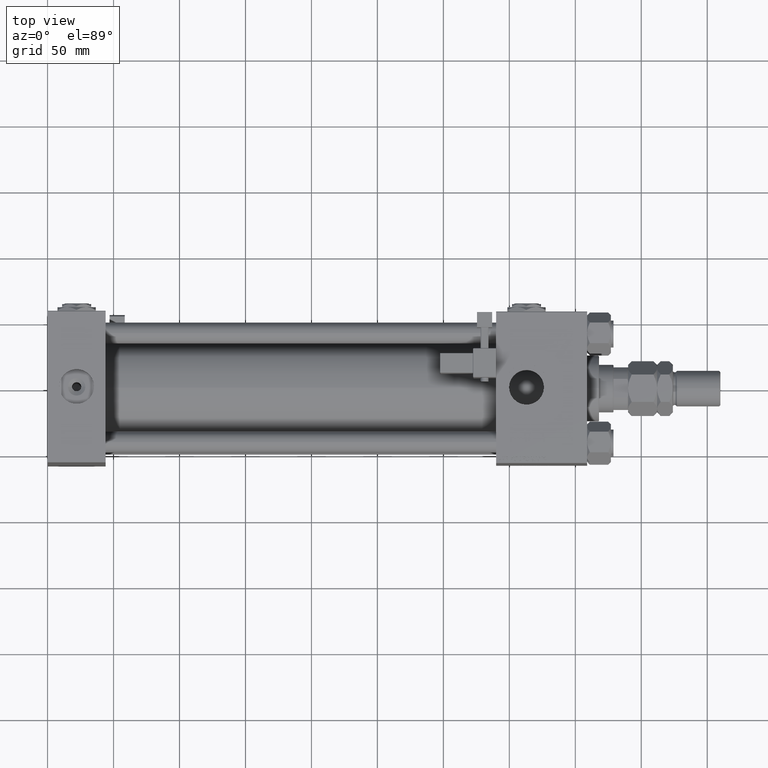
[diagram: clean part render]
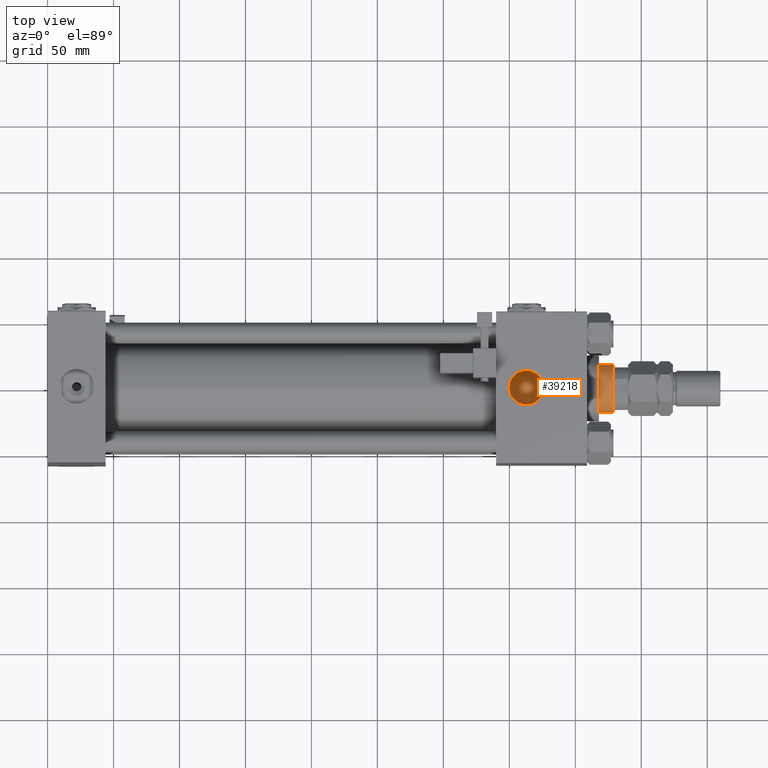
[diagram: same view with one face highlighted and labeled with its STEP entity id]
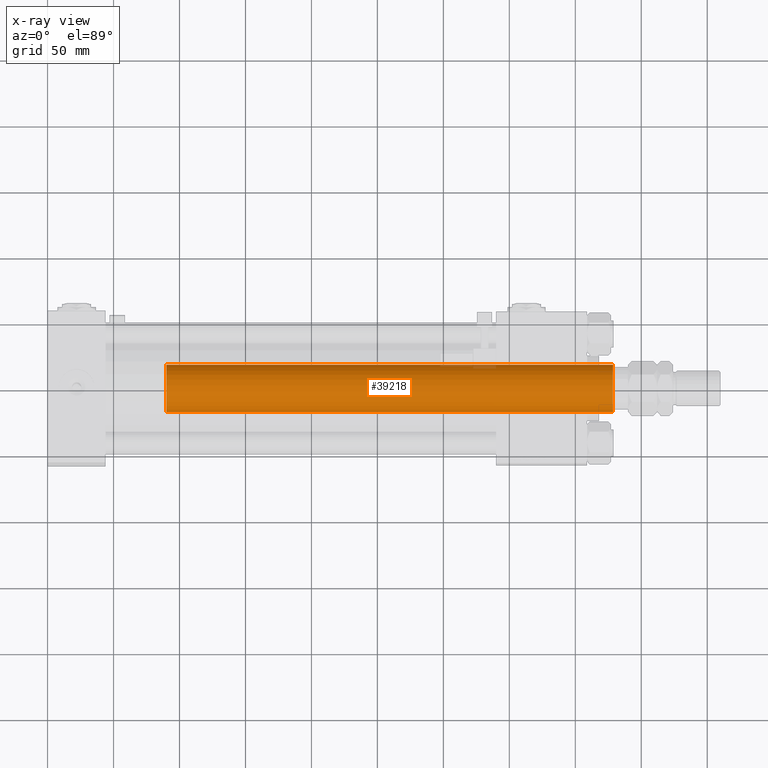
[diagram: x-ray of the same camera — body ghosted, the highlighted face saturated]
A machine part, top view. The second image highlights one B-rep face of the part: STEP entity #39218.
The next image is the same camera in x-ray: the body ghosted, the highlighted face saturated — about 1% of this face is hidden behind the body in this view.
In plain terms, the highlighted cylindrical surface (edge-blend (fillet) strip) has radius 18 mm, axis along (-1, 0, 0).
Its self-contained STEP definition (entity closure, byte-faithful):
#644 = DIRECTION ( 'NONE',  ( -0.000000000000000000, -0.000000000000000000, -1.000000000000000000 ) ) ;
#4937 = CYLINDRICAL_SURFACE ( 'NONE', #32413, 18.00000000000000000 ) ;
#6253 = CARTESIAN_POINT ( 'NONE',  ( 0.000000000000000000, 0.000000000000000000, 384.5000000000000568 ) ) ;
#8337 = AXIS2_PLACEMENT_3D ( 'NONE', #14437, #27241, #54011 ) ;
#9983 = ORIENTED_EDGE ( 'NONE', *, *, #25665, .T. ) ;
#13957 = DIRECTION ( 'NONE',  ( -0.000000000000000000, -0.000000000000000000, -1.000000000000000000 ) ) ;
#14335 = VECTOR ( 'NONE', #13957, 1000.000000000000000 ) ;
#14437 = CARTESIAN_POINT ( 'NONE',  ( 0.000000000000000000, 0.000000000000000000, 46.00000000000000000 ) ) ;
#15346 = CARTESIAN_POINT ( 'NONE',  ( -18.00000000000000000, 0.000000000000000000, 385.0000000000000000 ) ) ;
#19258 = AXIS2_PLACEMENT_3D ( 'NONE', #6253, #41006, #40721 ) ;
#19909 = DIRECTION ( 'NONE',  ( -0.000000000000000000, -0.000000000000000000, -1.000000000000000000 ) ) ;
#22354 = VERTEX_POINT ( 'NONE', #52766 ) ;
#23804 = CIRCLE ( 'NONE', #19258, 18.00000000000000000 ) ;
#24866 = EDGE_CURVE ( 'NONE', #37375, #22354, #45815, .T. ) ;
#25096 = EDGE_CURVE ( 'NONE', #22354, #41358, #29249, .T. ) ;
#25665 = EDGE_CURVE ( 'NONE', #40817, #37375, #23804, .T. ) ;
#26879 = CARTESIAN_POINT ( 'NONE',  ( 18.00000000000000000, 2.204364238465235428E-15, 384.5000000000000568 ) ) ;
#27241 = DIRECTION ( 'NONE',  ( 0.000000000000000000, 0.000000000000000000, 1.000000000000000000 ) ) ;
#27666 = EDGE_LOOP ( 'NONE', ( #53005, #9983, #29225, #38787 ) ) ;
#29225 = ORIENTED_EDGE ( 'NONE', *, *, #24866, .T. ) ;
#29249 = CIRCLE ( 'NONE', #8337, 18.00000000000000000 ) ;
#30758 = CARTESIAN_POINT ( 'NONE',  ( -18.00000000000000000, 0.000000000000000000, 384.5000000000000568 ) ) ;
#30870 = DIRECTION ( 'NONE',  ( -1.000000000000000000, 0.000000000000000000, 0.000000000000000000 ) ) ;
#31316 = CARTESIAN_POINT ( 'NONE',  ( 18.00000000000000000, 2.204364238465235428E-15, 46.00000000000000000 ) ) ;
#32413 = AXIS2_PLACEMENT_3D ( 'NONE', #52498, #644, #30870 ) ;
#37375 = VERTEX_POINT ( 'NONE', #30758 ) ;
#37568 = EDGE_CURVE ( 'NONE', #40817, #41358, #44399, .T. ) ;
#38787 = ORIENTED_EDGE ( 'NONE', *, *, #25096, .T. ) ;
#39218 = ADVANCED_FACE ( 'NONE', ( #39700 ), #4937, .T. ) ;
#39700 = FACE_OUTER_BOUND ( 'NONE', #27666, .T. ) ;
#40721 = DIRECTION ( 'NONE',  ( 1.000000000000000000, 0.000000000000000000, 0.000000000000000000 ) ) ;
#40817 = VERTEX_POINT ( 'NONE', #26879 ) ;
#41006 = DIRECTION ( 'NONE',  ( 0.000000000000000000, 0.000000000000000000, -1.000000000000000000 ) ) ;
#41358 = VERTEX_POINT ( 'NONE', #31316 ) ;
#44399 = LINE ( 'NONE', #52950, #14335 ) ;
#45815 = LINE ( 'NONE', #15346, #48321 ) ;
#48321 = VECTOR ( 'NONE', #19909, 1000.000000000000000 ) ;
#52498 = CARTESIAN_POINT ( 'NONE',  ( 0.000000000000000000, 0.000000000000000000, 385.0000000000000000 ) ) ;
#52766 = CARTESIAN_POINT ( 'NONE',  ( -18.00000000000000000, 0.000000000000000000, 46.00000000000000000 ) ) ;
#52950 = CARTESIAN_POINT ( 'NONE',  ( 18.00000000000000000, 2.204364238465235428E-15, 385.0000000000000000 ) ) ;
#53005 = ORIENTED_EDGE ( 'NONE', *, *, #37568, .F. ) ;
#54011 = DIRECTION ( 'NONE',  ( 1.000000000000000000, 0.000000000000000000, 0.000000000000000000 ) ) ;